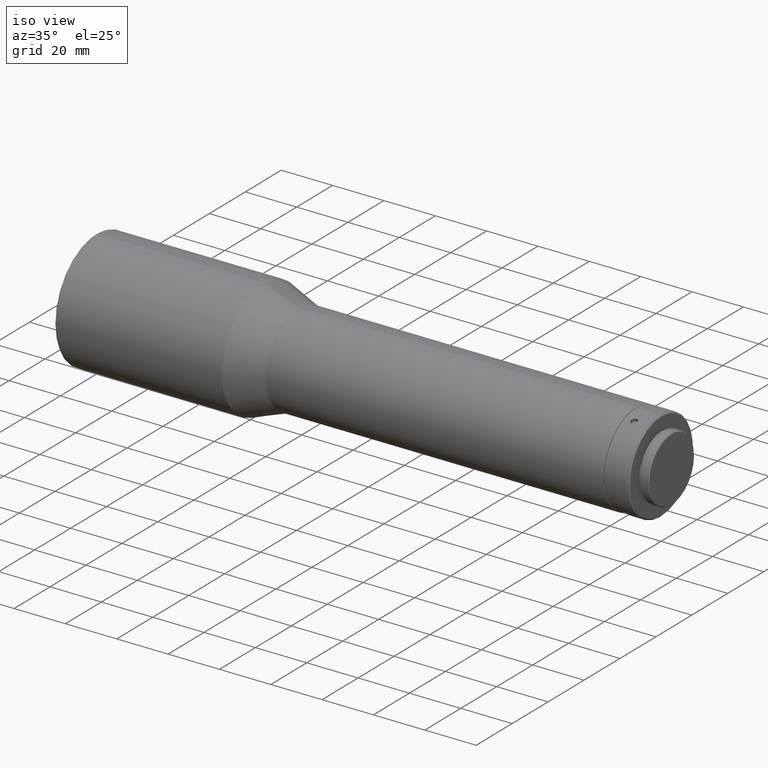
[diagram: clean part render]
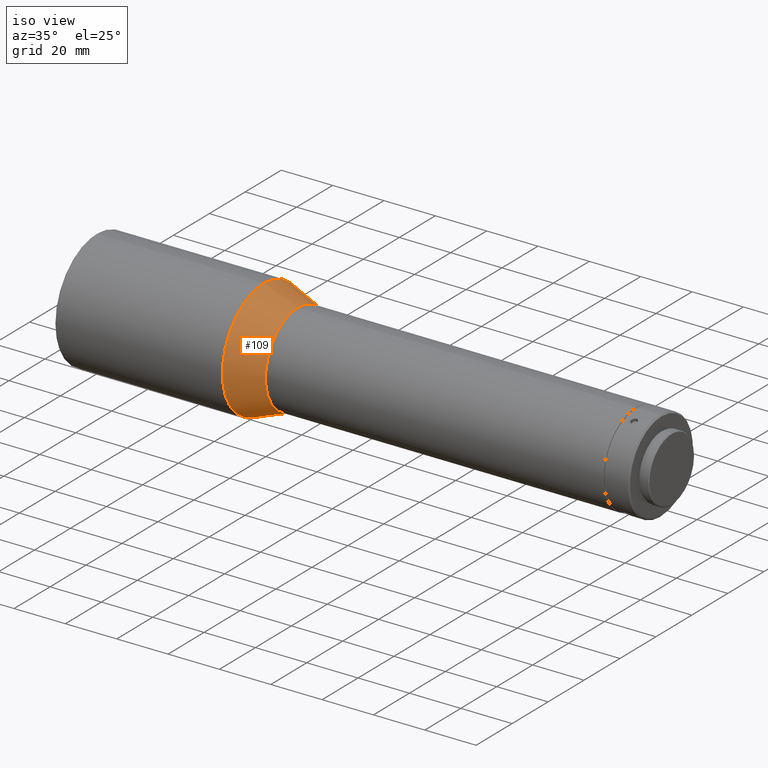
[diagram: same view with one face highlighted and labeled with its STEP entity id]
A machine part, iso view. The second image highlights one B-rep face of the part: STEP entity #109.
In plain terms, the highlighted conical surface has half-angle 20 deg.
Its self-contained STEP definition (entity closure, byte-faithful):
#47 = CARTESIAN_POINT ( 'NONE',  ( 545.1656931626172309, -3.869796473041096393E-15, -3.469446951953614189E-15 ) ) ;
#109 = ADVANCED_FACE ( 'NONE', ( #113, #376 ), #369, .T. ) ;
#110 = DIRECTION ( 'NONE',  ( 0.000000000000000000, 0.000000000000000000, 1.000000000000000000 ) ) ;
#113 = FACE_OUTER_BOUND ( 'NONE', #608, .T. ) ;
#122 = EDGE_CURVE ( 'NONE', #245, #245, #703, .T. ) ;
#140 = ORIENTED_EDGE ( 'NONE', *, *, #196, .T. ) ;
#196 = EDGE_CURVE ( 'NONE', #716, #716, #355, .T. ) ;
#245 = VERTEX_POINT ( 'NONE', #522 ) ;
#297 = AXIS2_PLACEMENT_3D ( 'NONE', #767, #624, #563 ) ;
#311 = CARTESIAN_POINT ( 'NONE',  ( 558.5716939346560821, -3.869796473041096393E-15, -3.479664509717021198E-15 ) ) ;
#319 = DIRECTION ( 'NONE',  ( 0.000000000000000000, 0.000000000000000000, 1.000000000000000000 ) ) ;
#323 = AXIS2_PLACEMENT_3D ( 'NONE', #47, #439, #319 ) ;
#339 = AXIS2_PLACEMENT_3D ( 'NONE', #311, #642, #110 ) ;
#355 = CIRCLE ( 'NONE', #297, 22.93969262078591598 ) ;
#369 = CONICAL_SURFACE ( 'NONE', #323, 22.93969262078591953, 0.3490658503988599559 ) ;
#376 = FACE_BOUND ( 'NONE', #717, .T. ) ;
#439 = DIRECTION ( 'NONE',  ( -1.000000000000000000, 0.000000000000000000, 0.000000000000000000 ) ) ;
#516 = CARTESIAN_POINT ( 'NONE',  ( 545.1656931626172309, -3.869796473041096393E-15, 22.93969262078591242 ) ) ;
#522 = CARTESIAN_POINT ( 'NONE',  ( 558.5716939346560821, -3.869796473041096393E-15, 18.06030737921410889 ) ) ;
#563 = DIRECTION ( 'NONE',  ( 0.000000000000000000, 0.000000000000000000, 1.000000000000000000 ) ) ;
#608 = EDGE_LOOP ( 'NONE', ( #140 ) ) ;
#624 = DIRECTION ( 'NONE',  ( 1.000000000000000000, 0.000000000000000000, 0.000000000000000000 ) ) ;
#642 = DIRECTION ( 'NONE',  ( -1.000000000000000000, -0.000000000000000000, -0.000000000000000000 ) ) ;
#664 = ORIENTED_EDGE ( 'NONE', *, *, #122, .T. ) ;
#703 = CIRCLE ( 'NONE', #339, 18.06030737921411244 ) ;
#716 = VERTEX_POINT ( 'NONE', #516 ) ;
#717 = EDGE_LOOP ( 'NONE', ( #664 ) ) ;
#767 = CARTESIAN_POINT ( 'NONE',  ( 545.1656931626172309, -3.869796473041096393E-15, -3.479664509717021198E-15 ) ) ;